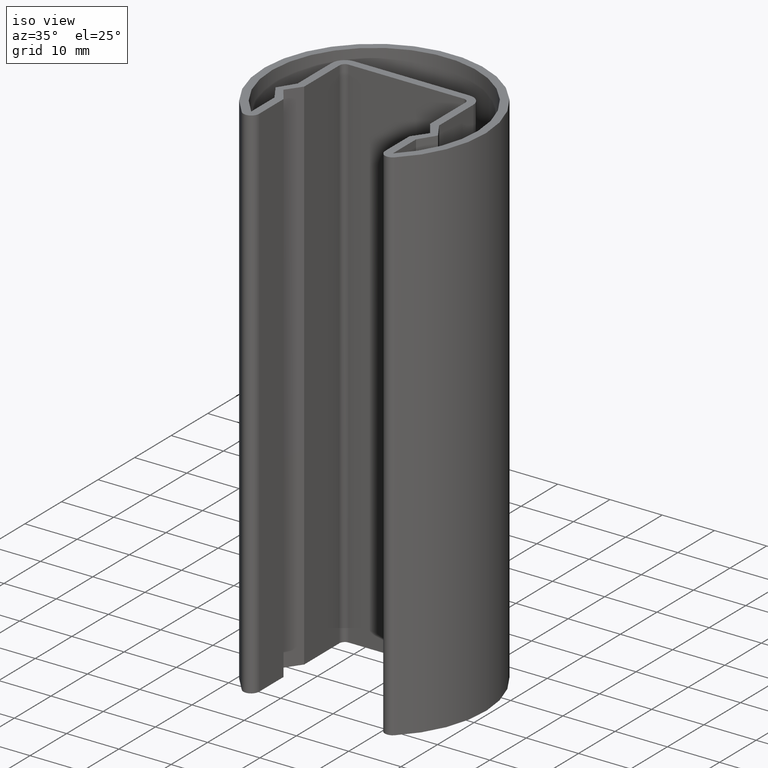
[diagram: clean part render]
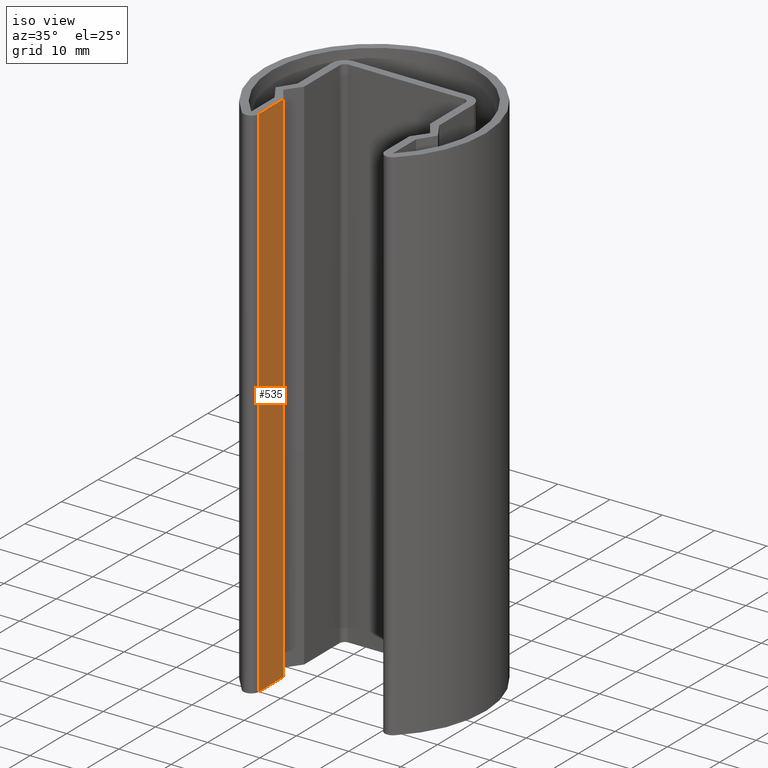
[diagram: same view with one face highlighted and labeled with its STEP entity id]
A machine part, iso view. The second image highlights one B-rep face of the part: STEP entity #535.
In plain terms, the highlighted planar face has unit normal (-1, -0, 0).
Its self-contained STEP definition (entity closure, byte-faithful):
#20=PLANE('',#578);
#40=LINE('',#776,#102);
#42=LINE('',#782,#104);
#43=LINE('',#784,#105);
#44=LINE('',#786,#106);
#102=VECTOR('',#625,1000.);
#104=VECTOR('',#631,1000.);
#105=VECTOR('',#632,1000.);
#106=VECTOR('',#633,1000.);
#168=ORIENTED_EDGE('',*,*,#324,.T.);
#169=ORIENTED_EDGE('',*,*,#325,.F.);
#170=ORIENTED_EDGE('',*,*,#326,.F.);
#171=ORIENTED_EDGE('',*,*,#321,.T.);
#321=EDGE_CURVE('',#400,#399,#40,.T.);
#324=EDGE_CURVE('',#399,#402,#42,.T.);
#325=EDGE_CURVE('',#403,#402,#43,.T.);
#326=EDGE_CURVE('',#400,#403,#44,.T.);
#399=VERTEX_POINT('',#775);
#400=VERTEX_POINT('',#777);
#402=VERTEX_POINT('',#783);
#403=VERTEX_POINT('',#785);
#467=EDGE_LOOP('',(#168,#169,#170,#171));
#497=FACE_BOUND('',#467,.T.);
#535=ADVANCED_FACE('',(#497),#20,.F.);
#578=AXIS2_PLACEMENT_3D('',#781,#629,#630);
#625=DIRECTION('',(0.,0.,-1.));
#629=DIRECTION('',(-1.,-1.04526900984522E-13,0.));
#630=DIRECTION('',(1.04526900984522E-13,-1.,0.));
#631=DIRECTION('',(-1.04526900984522E-13,1.,0.));
#632=DIRECTION('',(0.,0.,-1.));
#633=DIRECTION('',(-1.04526900984522E-13,1.,0.));
#775=CARTESIAN_POINT('',(-12.0499999999997,-23.,-50.));
#776=CARTESIAN_POINT('',(-12.0499999999997,-23.,50.));
#777=CARTESIAN_POINT('',(-12.0499999999997,-23.,50.));
#781=CARTESIAN_POINT('',(-12.0499999999997,-23.,50.));
#782=CARTESIAN_POINT('',(-12.0499999999997,-23.,-50.));
#783=CARTESIAN_POINT('',(-12.0500000000003,-16.3284271247462,-50.));
#784=CARTESIAN_POINT('',(-12.0500000000003,-16.3284271247462,50.));
#785=CARTESIAN_POINT('',(-12.0500000000003,-16.3284271247462,50.));
#786=CARTESIAN_POINT('',(-12.0499999999997,-23.,50.));